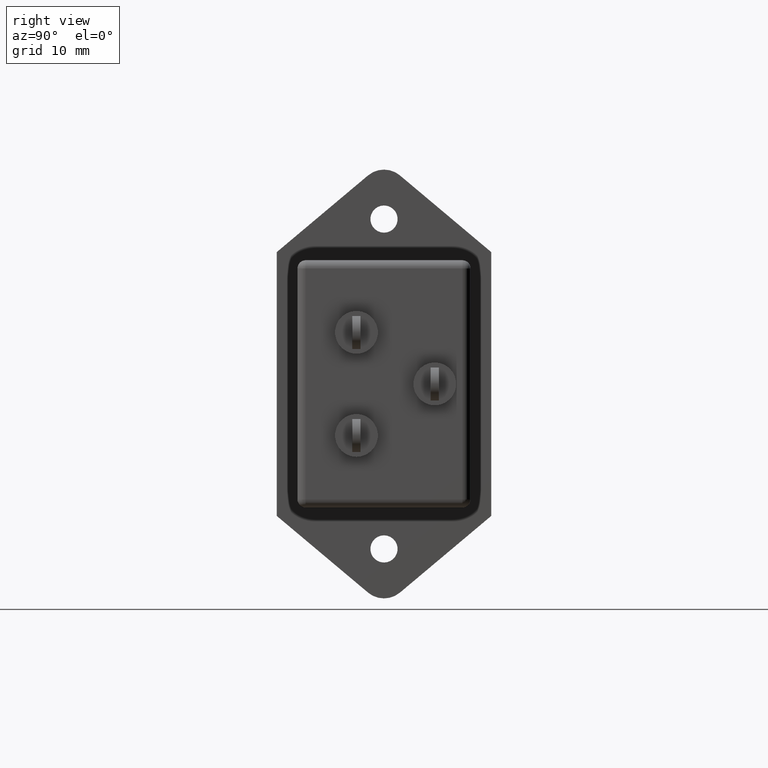
[diagram: clean part render]
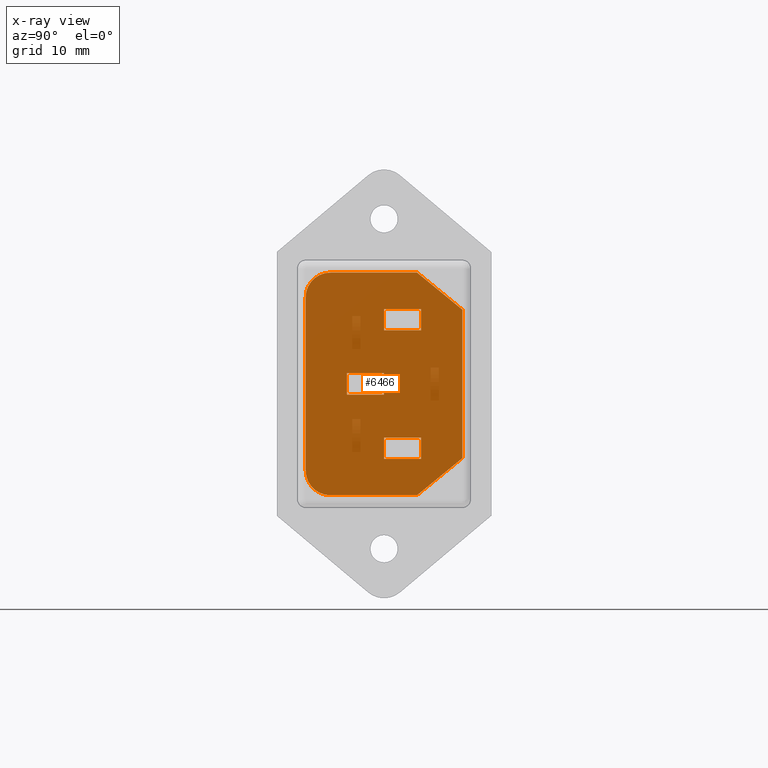
[diagram: x-ray — body ghosted, one internal face saturated and labeled with its STEP entity id]
A machine part, right view, then the same camera in x-ray: the body is ghosted and one INTERNAL B-rep face — a face not visible from any outside direction — is saturated and labeled: STEP entity #6466.
In plain terms, the highlighted planar face has unit normal (-1, 0, 0).
Its self-contained STEP definition (entity closure, byte-faithful):
#34 = ORIENTED_EDGE ( 'NONE', *, *, #7363, .T. ) ;
#253 = CIRCLE ( 'NONE', #5425, 2.999999999999999100 ) ;
#306 = VECTOR ( 'NONE', #6473, 1000.000000000000000 ) ;
#341 = VERTEX_POINT ( 'NONE', #8690 ) ;
#414 = LINE ( 'NONE', #3856, #2017 ) ;
#431 = CARTESIAN_POINT ( 'NONE',  ( 5.400000000000000400, -2.000000000000000000, 24.49999999999999300 ) ) ;
#448 = EDGE_LOOP ( 'NONE', ( #2318, #3847, #2243, #3632 ) ) ;
#453 = ORIENTED_EDGE ( 'NONE', *, *, #3889, .T. ) ;
#477 = DIRECTION ( 'NONE',  ( 0.0000000000000000000, -0.0000000000000000000, 1.000000000000000000 ) ) ;
#561 = FACE_BOUND ( 'NONE', #448, .T. ) ;
#571 = EDGE_CURVE ( 'NONE', #3478, #6532, #5491, .T. ) ;
#578 = CARTESIAN_POINT ( 'NONE',  ( 5.400000000000000400, -18.00000000000000400, 25.99999999999998600 ) ) ;
#634 = EDGE_CURVE ( 'NONE', #8381, #3418, #3934, .T. ) ;
#649 = EDGE_CURVE ( 'NONE', #2474, #5095, #5914, .T. ) ;
#694 = EDGE_CURVE ( 'NONE', #5211, #341, #253, .T. ) ;
#713 = VERTEX_POINT ( 'NONE', #7215 ) ;
#759 = EDGE_CURVE ( 'NONE', #4030, #4810, #7915, .T. ) ;
#839 = DIRECTION ( 'NONE',  ( 0.0000000000000000000, 1.000000000000000000, 0.0000000000000000000 ) ) ;
#843 = ORIENTED_EDGE ( 'NONE', *, *, #2178, .T. ) ;
#874 = PLANE ( 'NONE',  #7938 ) ;
#887 = CARTESIAN_POINT ( 'NONE',  ( 5.400000000000000400, -11.50000000000000700, 21.99999999999999300 ) ) ;
#915 = CARTESIAN_POINT ( 'NONE',  ( 5.400000000000000400, -7.499999999999996400, 28.99999999999998600 ) ) ;
#946 = DIRECTION ( 'NONE',  ( 0.0000000000000000000, 0.0000000000000000000, 1.000000000000000000 ) ) ;
#990 = VECTOR ( 'NONE', #5023, 1000.000000000000000 ) ;
#1088 = CARTESIAN_POINT ( 'NONE',  ( 5.400000000000000400, -7.000000000000000900, 24.59999999999999100 ) ) ;
#1123 = EDGE_CURVE ( 'NONE', #4810, #2474, #8617, .T. ) ;
#1172 = VECTOR ( 'NONE', #7770, 1000.000000000000000 ) ;
#1230 = EDGE_CURVE ( 'NONE', #713, #8381, #3687, .T. ) ;
#1326 = VECTOR ( 'NONE', #6489, 1000.000000000000000 ) ;
#1361 = EDGE_LOOP ( 'NONE', ( #1947, #3047, #3249, #3975 ) ) ;
#1480 = VERTEX_POINT ( 'NONE', #4800 ) ;
#1553 = ORIENTED_EDGE ( 'NONE', *, *, #571, .T. ) ;
#1560 = DIRECTION ( 'NONE',  ( 0.0000000000000000000, -1.000000000000000000, 0.0000000000000000000 ) ) ;
#1599 = CARTESIAN_POINT ( 'NONE',  ( 5.400000000000000400, -11.50000000000000200, -7.500000000000002700 ) ) ;
#1639 = CARTESIAN_POINT ( 'NONE',  ( 5.400000000000000400, -18.00000000000000400, 28.99999999999998600 ) ) ;
#1649 = VERTEX_POINT ( 'NONE', #7545 ) ;
#1789 = EDGE_LOOP ( 'NONE', ( #5276, #453, #843, #2448 ) ) ;
#1809 = LINE ( 'NONE', #2194, #6829 ) ;
#1947 = ORIENTED_EDGE ( 'NONE', *, *, #3647, .T. ) ;
#1969 = EDGE_CURVE ( 'NONE', #1480, #1649, #6165, .T. ) ;
#1990 = DIRECTION ( 'NONE',  ( 0.0000000000000000000, -1.000000000000000000, 0.0000000000000000000 ) ) ;
#2007 = ORIENTED_EDGE ( 'NONE', *, *, #694, .T. ) ;
#2017 = VECTOR ( 'NONE', #477, 1000.000000000000000 ) ;
#2050 = VECTOR ( 'NONE', #1990, 1000.000000000000000 ) ;
#2063 = LINE ( 'NONE', #431, #6232 ) ;
#2178 = EDGE_CURVE ( 'NONE', #5660, #5881, #4271, .T. ) ;
#2193 = VERTEX_POINT ( 'NONE', #3446 ) ;
#2194 = CARTESIAN_POINT ( 'NONE',  ( 5.400000000000000400, -11.50000000000000700, 8.999999999999978700 ) ) ;
#2227 = VERTEX_POINT ( 'NONE', #3498 ) ;
#2243 = ORIENTED_EDGE ( 'NONE', *, *, #1230, .T. ) ;
#2271 = CARTESIAN_POINT ( 'NONE',  ( 5.400000000000000400, -16.00000000000001100, 14.19999999999999800 ) ) ;
#2318 = ORIENTED_EDGE ( 'NONE', *, *, #7207, .T. ) ;
#2342 = DIRECTION ( 'NONE',  ( 0.0000000000000000000, 0.0000000000000000000, -1.000000000000000000 ) ) ;
#2375 = DIRECTION ( 'NONE',  ( 0.0000000000000000000, 0.0000000000000000000, -1.000000000000000000 ) ) ;
#2448 = ORIENTED_EDGE ( 'NONE', *, *, #8429, .T. ) ;
#2474 = VERTEX_POINT ( 'NONE', #4037 ) ;
#2890 = ORIENTED_EDGE ( 'NONE', *, *, #4902, .T. ) ;
#2900 = CARTESIAN_POINT ( 'NONE',  ( 5.400000000000000400, -7.500000000000000000, 1.999999999999994900 ) ) ;
#3008 = EDGE_LOOP ( 'NONE', ( #34, #2007, #7525, #3690, #1553, #5174, #5775, #2890 ) ) ;
#3036 = DIRECTION ( 'NONE',  ( 0.0000000000000000000, -1.334402673828310500E-015, -1.000000000000000000 ) ) ;
#3047 = ORIENTED_EDGE ( 'NONE', *, *, #759, .T. ) ;
#3059 = VECTOR ( 'NONE', #2375, 1000.000000000000000 ) ;
#3093 = VECTOR ( 'NONE', #7431, 1000.000000000000000 ) ;
#3154 = DIRECTION ( 'NONE',  ( 0.0000000000000000000, 0.0000000000000000000, 1.000000000000000000 ) ) ;
#3249 = ORIENTED_EDGE ( 'NONE', *, *, #1123, .T. ) ;
#3361 = DIRECTION ( 'NONE',  ( 0.0000000000000000000, 0.0000000000000000000, -1.000000000000000000 ) ) ;
#3418 = VERTEX_POINT ( 'NONE', #5488 ) ;
#3446 = CARTESIAN_POINT ( 'NONE',  ( 5.400000000000000400, -2.000000000000000000, 6.499999999999993800 ) ) ;
#3478 = VERTEX_POINT ( 'NONE', #4916 ) ;
#3498 = CARTESIAN_POINT ( 'NONE',  ( 5.400000000000000400, -11.50000000000000700, 21.99999999999999300 ) ) ;
#3632 = ORIENTED_EDGE ( 'NONE', *, *, #634, .T. ) ;
#3647 = EDGE_CURVE ( 'NONE', #5095, #4030, #8502, .T. ) ;
#3687 = LINE ( 'NONE', #8482, #8197 ) ;
#3690 = ORIENTED_EDGE ( 'NONE', *, *, #4654, .T. ) ;
#3699 = CARTESIAN_POINT ( 'NONE',  ( 5.400000000000000400, -7.500000000000000000, 1.999999999999994900 ) ) ;
#3721 = DIRECTION ( 'NONE',  ( 0.0000000000000000000, 1.156482317317871700E-015, 1.000000000000000000 ) ) ;
#3847 = ORIENTED_EDGE ( 'NONE', *, *, #6630, .T. ) ;
#3856 = CARTESIAN_POINT ( 'NONE',  ( 5.400000000000000400, -2.000000000000000000, 6.499999999999993800 ) ) ;
#3889 = EDGE_CURVE ( 'NONE', #1649, #5660, #4494, .T. ) ;
#3934 = LINE ( 'NONE', #1088, #3059 ) ;
#3963 = CARTESIAN_POINT ( 'NONE',  ( 5.400000000000000400, -7.000000000000007100, 6.399999999999979000 ) ) ;
#3975 = ORIENTED_EDGE ( 'NONE', *, *, #649, .T. ) ;
#4030 = VERTEX_POINT ( 'NONE', #5034 ) ;
#4037 = CARTESIAN_POINT ( 'NONE',  ( 5.400000000000000400, -16.00000000000001100, 16.80000000000000100 ) ) ;
#4082 = CARTESIAN_POINT ( 'NONE',  ( 5.400000000000000400, -11.50000000000000700, 16.80000000000000100 ) ) ;
#4115 = VECTOR ( 'NONE', #2342, 1000.000000000000000 ) ;
#4183 = VERTEX_POINT ( 'NONE', #6975 ) ;
#4222 = EDGE_CURVE ( 'NONE', #2193, #4357, #414, .T. ) ;
#4271 = LINE ( 'NONE', #6104, #3093 ) ;
#4357 = VERTEX_POINT ( 'NONE', #8021 ) ;
#4390 = CARTESIAN_POINT ( 'NONE',  ( 5.400000000000000400, -18.00000000000000400, 4.999999999999997300 ) ) ;
#4482 = DIRECTION ( 'NONE',  ( 0.0000000000000000000, 1.000000000000000000, 0.0000000000000000000 ) ) ;
#4494 = LINE ( 'NONE', #7877, #7236 ) ;
#4503 = VECTOR ( 'NONE', #3036, 1000.000000000000000 ) ;
#4519 = DIRECTION ( 'NONE',  ( 0.0000000000000000000, -1.000000000000000000, 0.0000000000000000000 ) ) ;
#4527 = FACE_OUTER_BOUND ( 'NONE', #3008, .T. ) ;
#4540 = CARTESIAN_POINT ( 'NONE',  ( 5.400000000000000400, -11.50000000000000700, 16.80000000000000100 ) ) ;
#4597 = VECTOR ( 'NONE', #1560, 1000.000000000000000 ) ;
#4654 = EDGE_CURVE ( 'NONE', #4183, #3478, #5197, .T. ) ;
#4709 = CARTESIAN_POINT ( 'NONE',  ( 5.400000000000000400, -7.000000000000000900, 24.59999999999999100 ) ) ;
#4800 = CARTESIAN_POINT ( 'NONE',  ( 5.400000000000000400, -7.000000000000007100, 8.999999999999978700 ) ) ;
#4810 = VERTEX_POINT ( 'NONE', #5210 ) ;
#4902 = EDGE_CURVE ( 'NONE', #4357, #7196, #2063, .T. ) ;
#4916 = CARTESIAN_POINT ( 'NONE',  ( 5.400000000000000400, -18.00000000000000400, 1.999999999999998200 ) ) ;
#4931 = LINE ( 'NONE', #6319, #4115 ) ;
#4947 = DIRECTION ( 'NONE',  ( -1.000000000000000000, 0.0000000000000000000, 0.0000000000000000000 ) ) ;
#5023 = DIRECTION ( 'NONE',  ( 0.0000000000000000000, 1.000000000000000000, -2.891205793294677800E-016 ) ) ;
#5034 = CARTESIAN_POINT ( 'NONE',  ( 5.400000000000000400, -11.50000000000000700, 14.19999999999999800 ) ) ;
#5095 = VERTEX_POINT ( 'NONE', #4082 ) ;
#5174 = ORIENTED_EDGE ( 'NONE', *, *, #6603, .T. ) ;
#5197 = CIRCLE ( 'NONE', #8112, 2.999999999999999100 ) ;
#5210 = CARTESIAN_POINT ( 'NONE',  ( 5.400000000000000400, -16.00000000000001100, 14.19999999999999800 ) ) ;
#5211 = VERTEX_POINT ( 'NONE', #1639 ) ;
#5276 = ORIENTED_EDGE ( 'NONE', *, *, #1969, .T. ) ;
#5370 = FACE_BOUND ( 'NONE', #1361, .T. ) ;
#5425 = AXIS2_PLACEMENT_3D ( 'NONE', #578, #7798, #3154 ) ;
#5488 = CARTESIAN_POINT ( 'NONE',  ( 5.400000000000000400, -7.000000000000000900, 21.99999999999999300 ) ) ;
#5491 = LINE ( 'NONE', #3699, #990 ) ;
#5648 = CARTESIAN_POINT ( 'NONE',  ( 5.400000000000000400, -11.50000000000000700, 8.999999999999978700 ) ) ;
#5660 = VERTEX_POINT ( 'NONE', #7505 ) ;
#5721 = DIRECTION ( 'NONE',  ( 0.0000000000000000000, 0.7739572992033212400, 0.6332377902572625700 ) ) ;
#5739 = DIRECTION ( 'NONE',  ( 1.000000000000000000, -0.0000000000000000000, -0.0000000000000000000 ) ) ;
#5771 = VECTOR ( 'NONE', #8289, 1000.000000000000000 ) ;
#5775 = ORIENTED_EDGE ( 'NONE', *, *, #4222, .T. ) ;
#5881 = VERTEX_POINT ( 'NONE', #5648 ) ;
#5914 = LINE ( 'NONE', #4540, #1326 ) ;
#5954 = CARTESIAN_POINT ( 'NONE',  ( 5.400000000000000400, -11.50000000000000700, 14.19999999999999800 ) ) ;
#5965 = LINE ( 'NONE', #8581, #306 ) ;
#6104 = CARTESIAN_POINT ( 'NONE',  ( 5.400000000000000400, -11.50000000000000700, 6.399999999999979000 ) ) ;
#6165 = LINE ( 'NONE', #3963, #8687 ) ;
#6232 = VECTOR ( 'NONE', #7139, 1000.000000000000000 ) ;
#6319 = CARTESIAN_POINT ( 'NONE',  ( 5.400000000000000400, -21.00000000000000000, 4.999999999999997300 ) ) ;
#6466 = ADVANCED_FACE ( 'NONE', ( #5370, #561, #8417, #4527 ), #874, .F. ) ;
#6473 = DIRECTION ( 'NONE',  ( 0.0000000000000000000, -1.000000000000000000, 0.0000000000000000000 ) ) ;
#6489 = DIRECTION ( 'NONE',  ( 0.0000000000000000000, 1.000000000000000000, 7.709882115452470300E-016 ) ) ;
#6532 = VERTEX_POINT ( 'NONE', #2900 ) ;
#6603 = EDGE_CURVE ( 'NONE', #6532, #2193, #7671, .T. ) ;
#6630 = EDGE_CURVE ( 'NONE', #2227, #713, #6928, .T. ) ;
#6829 = VECTOR ( 'NONE', #839, 1000.000000000000000 ) ;
#6928 = LINE ( 'NONE', #7063, #1172 ) ;
#6975 = CARTESIAN_POINT ( 'NONE',  ( 5.400000000000000400, -21.00000000000000000, 4.999999999999997300 ) ) ;
#7063 = CARTESIAN_POINT ( 'NONE',  ( 5.400000000000000400, -11.50000000000000500, 24.59999999999999100 ) ) ;
#7094 = CARTESIAN_POINT ( 'NONE',  ( 5.400000000000000400, -7.500000000000000000, 1.999999999999994900 ) ) ;
#7139 = DIRECTION ( 'NONE',  ( 0.0000000000000000000, -0.7739572992033215700, 0.6332377902572621200 ) ) ;
#7196 = VERTEX_POINT ( 'NONE', #915 ) ;
#7207 = EDGE_CURVE ( 'NONE', #3418, #2227, #8283, .T. ) ;
#7215 = CARTESIAN_POINT ( 'NONE',  ( 5.400000000000000400, -11.50000000000000500, 24.59999999999999100 ) ) ;
#7236 = VECTOR ( 'NONE', #4519, 1000.000000000000000 ) ;
#7363 = EDGE_CURVE ( 'NONE', #7196, #5211, #5965, .T. ) ;
#7431 = DIRECTION ( 'NONE',  ( 0.0000000000000000000, 0.0000000000000000000, 1.000000000000000000 ) ) ;
#7505 = CARTESIAN_POINT ( 'NONE',  ( 5.400000000000000400, -11.50000000000000700, 6.399999999999979000 ) ) ;
#7525 = ORIENTED_EDGE ( 'NONE', *, *, #8659, .T. ) ;
#7545 = CARTESIAN_POINT ( 'NONE',  ( 5.400000000000000400, -7.000000000000007100, 6.399999999999979000 ) ) ;
#7671 = LINE ( 'NONE', #7094, #7777 ) ;
#7770 = DIRECTION ( 'NONE',  ( 0.0000000000000000000, 6.672013369141570100E-016, 1.000000000000000000 ) ) ;
#7777 = VECTOR ( 'NONE', #5721, 999.9999999999998900 ) ;
#7798 = DIRECTION ( 'NONE',  ( 1.000000000000000000, -0.0000000000000000000, -0.0000000000000000000 ) ) ;
#7877 = CARTESIAN_POINT ( 'NONE',  ( 5.400000000000000400, -11.50000000000000700, 6.399999999999979000 ) ) ;
#7915 = LINE ( 'NONE', #5954, #2050 ) ;
#7938 = AXIS2_PLACEMENT_3D ( 'NONE', #1599, #4947, #946 ) ;
#8021 = CARTESIAN_POINT ( 'NONE',  ( 5.400000000000000400, -2.000000000000000000, 24.49999999999999300 ) ) ;
#8112 = AXIS2_PLACEMENT_3D ( 'NONE', #4390, #5739, #3721 ) ;
#8197 = VECTOR ( 'NONE', #4482, 1000.000000000000000 ) ;
#8283 = LINE ( 'NONE', #887, #4597 ) ;
#8289 = DIRECTION ( 'NONE',  ( 0.0000000000000000000, 0.0000000000000000000, 1.000000000000000000 ) ) ;
#8381 = VERTEX_POINT ( 'NONE', #4709 ) ;
#8417 = FACE_BOUND ( 'NONE', #1789, .T. ) ;
#8429 = EDGE_CURVE ( 'NONE', #5881, #1480, #1809, .T. ) ;
#8450 = CARTESIAN_POINT ( 'NONE',  ( 5.400000000000000400, -11.50000000000000500, 15.50000000000000000 ) ) ;
#8482 = CARTESIAN_POINT ( 'NONE',  ( 5.400000000000000400, -11.50000000000000500, 24.59999999999999100 ) ) ;
#8502 = LINE ( 'NONE', #8450, #4503 ) ;
#8581 = CARTESIAN_POINT ( 'NONE',  ( 5.400000000000000400, -7.499999999999996400, 28.99999999999998600 ) ) ;
#8617 = LINE ( 'NONE', #2271, #5771 ) ;
#8659 = EDGE_CURVE ( 'NONE', #341, #4183, #4931, .T. ) ;
#8687 = VECTOR ( 'NONE', #3361, 1000.000000000000000 ) ;
#8690 = CARTESIAN_POINT ( 'NONE',  ( 5.400000000000000400, -21.00000000000000000, 25.99999999999998600 ) ) ;